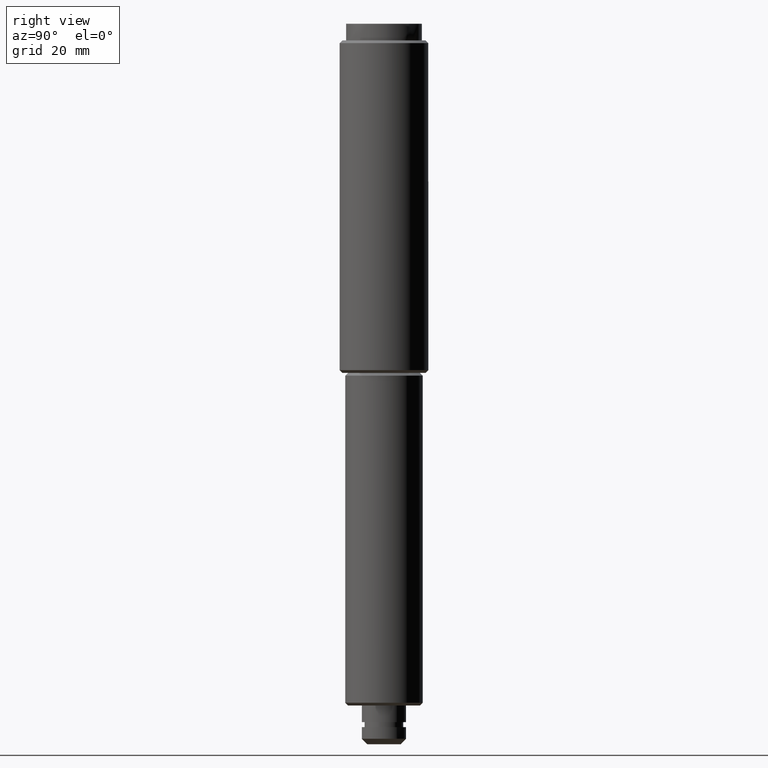
[diagram: clean part render]
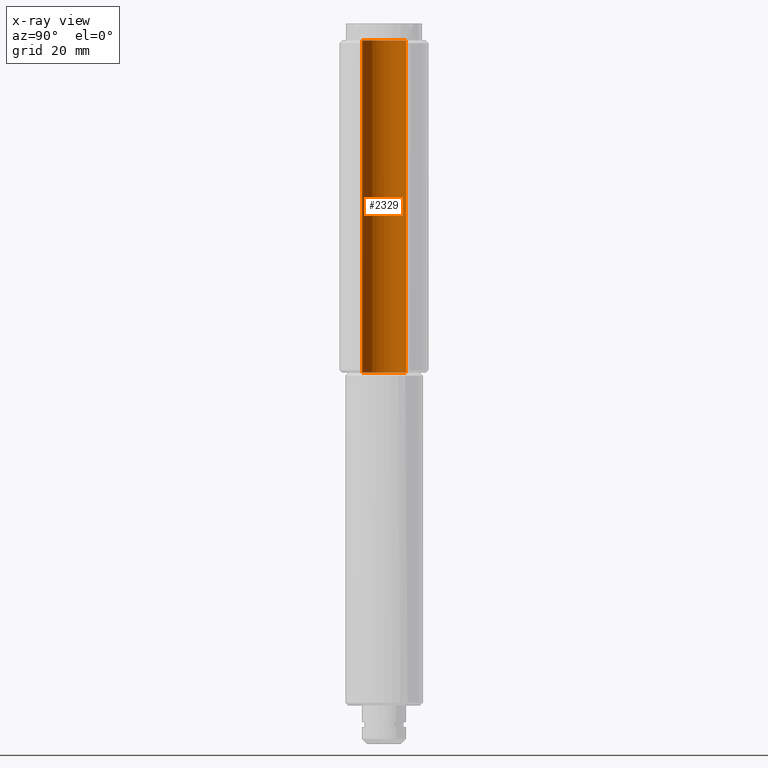
[diagram: x-ray — body ghosted, one internal face saturated and labeled with its STEP entity id]
A machine part, right view, then the same camera in x-ray: the body is ghosted and one INTERNAL B-rep face — a face not visible from any outside direction — is saturated and labeled: STEP entity #2329.
In plain terms, the highlighted face is a freeform B-spline surface patch.
Its self-contained STEP definition (entity closure, byte-faithful):
#2227=CARTESIAN_POINT('',(0.472136938627034,-3.972038105454666,128.500000000000030));
#2228=CARTESIAN_POINT('',(0.358458914551911,-3.985550461794422,128.500000000000060));
#2229=CARTESIAN_POINT('',(0.244194158139428,-3.992539193687467,128.500000000000000));
#2230=CARTESIAN_POINT('',(-3.748345035548039,-4.236733351826894,128.500000000000030));
#2231=CARTESIAN_POINT('',(-3.992539193687467,-0.244194158139428,128.500000000000000));
#2232=CARTESIAN_POINT('',(-4.236733351826894,3.748345035548039,128.500000000000030));
#2233=CARTESIAN_POINT('',(-0.244194158139428,3.992539193687467,128.500000000000000));
#2234=CARTESIAN_POINT('',(0.472136938627034,-3.972038105454666,65.462500000000006));
#2235=CARTESIAN_POINT('',(0.358458914551911,-3.985550461794422,65.462500000000006));
#2236=CARTESIAN_POINT('',(0.244194158139428,-3.992539193687467,65.462500000000006));
#2237=CARTESIAN_POINT('',(-3.748345035548039,-4.236733351826894,65.462500000000020));
#2238=CARTESIAN_POINT('',(-3.992539193687467,-0.244194158139428,65.462500000000006));
#2239=CARTESIAN_POINT('',(-4.236733351826894,3.748345035548039,65.462500000000020));
#2240=CARTESIAN_POINT('',(-0.244194158139428,3.992539193687467,65.462500000000006));
#2248=(BOUNDED_SURFACE()B_SPLINE_SURFACE(2,1,((#2227,#2234),(#2228,#2235),(#2229,#2236),(#2230,#2237),(#2231,#2238),(#2232,#2239),(#2233,#2240)),.UNSPECIFIED.,.F.,.F.,.U.)B_SPLINE_SURFACE_WITH_KNOTS((3,2,2,3),(2,2),(0.0,0.265096679918781,6.892513677888299,13.519930675857820),(0.0,63.037500000000051),.UNSPECIFIED.)GEOMETRIC_REPRESENTATION_ITEM()RATIONAL_B_SPLINE_SURFACE(((0.977505800795127,0.977505800795127),(0.988284271247462,0.988284271247462),(1.0,1.0),(0.707106781186548,0.707106781186548),(1.0,1.0),(0.707106781186548,0.707106781186548),(1.0,1.0)))REPRESENTATION_ITEM('')SURFACE());
#2249=CARTESIAN_POINT('',(0.472136938807548,-3.972038105433208,67.0));
#2250=VERTEX_POINT('',#2249);
#2251=CARTESIAN_POINT('',(-4.0,0.0,67.0));
#2252=VERTEX_POINT('',#2251);
#2253=CARTESIAN_POINT('',(0.472136938807548,-3.972038105433208,67.0));
#2254=CARTESIAN_POINT('',(0.236896478790063,-4.000000000000001,67.000000000000014));
#2255=CARTESIAN_POINT('',(0.0,-4.0,67.0));
#2256=CARTESIAN_POINT('',(-4.000000000000000,-4.000000000000000,67.0));
#2257=CARTESIAN_POINT('',(-4.0,0.0,67.0));
#2265=(BOUNDED_CURVE()B_SPLINE_CURVE(2,(#2253,#2254,#2255,#2256,#2257),.UNSPECIFIED.,.F.,.U.)B_SPLINE_CURVE_WITH_KNOTS((3,2,3),(0.229562473500283,0.250000000000000,0.500000000000000),.UNSPECIFIED.)CURVE()GEOMETRIC_REPRESENTATION_ITEM()RATIONAL_B_SPLINE_CURVE((0.956026754157777,0.976055948315651,1.0,0.707106781186548,1.0))REPRESENTATION_ITEM(''));
#2266=EDGE_CURVE('',#2250,#2252,#2265,.T.);
#2267=ORIENTED_EDGE('',*,*,#2266,.T.);
#2268=CARTESIAN_POINT('',(-0.244191869233151,3.992539333681656,67.0));
#2269=VERTEX_POINT('',#2268);
#2270=CARTESIAN_POINT('',(-4.0,0.0,67.0));
#2271=CARTESIAN_POINT('',(-4.000000000000000,3.762826428866097,67.000000000000028));
#2272=CARTESIAN_POINT('',(-0.244191869233151,3.992539333681656,67.0));
#2280=(BOUNDED_CURVE()B_SPLINE_CURVE(2,(#2270,#2271,#2272),.UNSPECIFIED.,.F.,.U.)B_SPLINE_CURVE_WITH_KNOTS((3,3),(0.500000000000000,0.739333061162340),.UNSPECIFIED.)CURVE()GEOMETRIC_REPRESENTATION_ITEM()RATIONAL_B_SPLINE_CURVE((1.0,0.719603877390742,0.976072253678479))REPRESENTATION_ITEM(''));
#2281=EDGE_CURVE('',#2252,#2269,#2280,.T.);
#2282=ORIENTED_EDGE('',*,*,#2281,.T.);
#2283=CARTESIAN_POINT('',(-0.244191897369028,3.992539331960824,127.0));
#2284=VERTEX_POINT('',#2283);
#2285=CARTESIAN_POINT('',(-0.244191897369028,3.992539331960824,127.0));
#2286=CARTESIAN_POINT('',(-0.244191869233151,3.992539333681656,67.0));
#2287=QUASI_UNIFORM_CURVE('',1,(#2285,#2286),.UNSPECIFIED.,.F.,.U.);
#2288=EDGE_CURVE('',#2284,#2269,#2287,.T.);
#2289=ORIENTED_EDGE('',*,*,#2288,.F.);
#2290=CARTESIAN_POINT('',(-4.0,0.0,127.0));
#2291=VERTEX_POINT('',#2290);
#2292=CARTESIAN_POINT('',(-4.0,0.0,127.0));
#2293=CARTESIAN_POINT('',(-4.000000000000001,3.762826402299480,127.0));
#2294=CARTESIAN_POINT('',(-0.244191897369028,3.992539331960824,127.0));
#2302=(BOUNDED_CURVE()B_SPLINE_CURVE(2,(#2292,#2293,#2294),.UNSPECIFIED.,.F.,.U.)B_SPLINE_CURVE_WITH_KNOTS((3,3),(0.500000000000000,0.739333059946383),.UNSPECIFIED.)CURVE()GEOMETRIC_REPRESENTATION_ITEM()RATIONAL_B_SPLINE_CURVE((1.0,0.719603878815324,0.976072251072450))REPRESENTATION_ITEM(''));
#2303=EDGE_CURVE('',#2291,#2284,#2302,.T.);
#2304=ORIENTED_EDGE('',*,*,#2303,.F.);
#2305=CARTESIAN_POINT('',(0.472136938807548,-3.972038105433209,127.0));
#2306=VERTEX_POINT('',#2305);
#2307=CARTESIAN_POINT('',(0.472136938807548,-3.972038105433209,126.999999999999990));
#2308=CARTESIAN_POINT('',(0.236896478790063,-4.000000000000001,126.999999999999960));
#2309=CARTESIAN_POINT('',(0.0,-4.0,127.0));
#2310=CARTESIAN_POINT('',(-4.000000000000000,-4.000000000000000,126.999999999999990));
#2311=CARTESIAN_POINT('',(-4.0,0.0,127.0));
#2319=(BOUNDED_CURVE()B_SPLINE_CURVE(2,(#2307,#2308,#2309,#2310,#2311),.UNSPECIFIED.,.F.,.U.)B_SPLINE_CURVE_WITH_KNOTS((3,2,3),(0.229562473500283,0.250000000000000,0.500000000000000),.UNSPECIFIED.)CURVE()GEOMETRIC_REPRESENTATION_ITEM()RATIONAL_B_SPLINE_CURVE((0.956026754157777,0.976055948315651,1.0,0.707106781186548,1.0))REPRESENTATION_ITEM(''));
#2320=EDGE_CURVE('',#2306,#2291,#2319,.T.);
#2321=ORIENTED_EDGE('',*,*,#2320,.F.);
#2322=CARTESIAN_POINT('',(0.472136938807548,-3.972038105433209,127.0));
#2323=CARTESIAN_POINT('',(0.472136938807548,-3.972038105433208,67.0));
#2324=QUASI_UNIFORM_CURVE('',1,(#2322,#2323),.UNSPECIFIED.,.F.,.U.);
#2325=EDGE_CURVE('',#2306,#2250,#2324,.T.);
#2326=ORIENTED_EDGE('',*,*,#2325,.T.);
#2327=EDGE_LOOP('',(#2267,#2282,#2289,#2304,#2321,#2326));
#2328=FACE_OUTER_BOUND('',#2327,.T.);
#2329=ADVANCED_FACE('',(#2328),#2248,.F.);